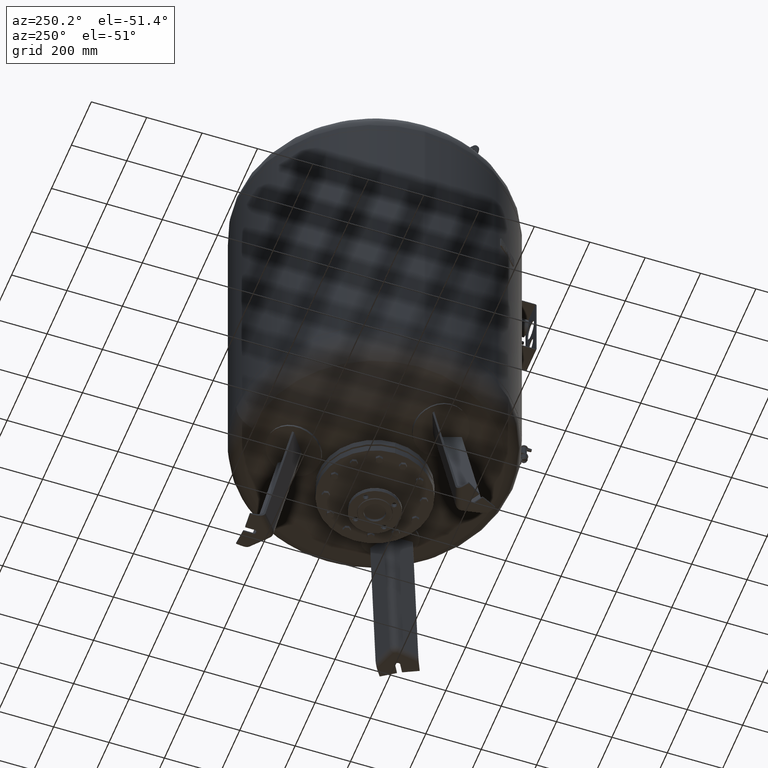
[diagram: clean part render]
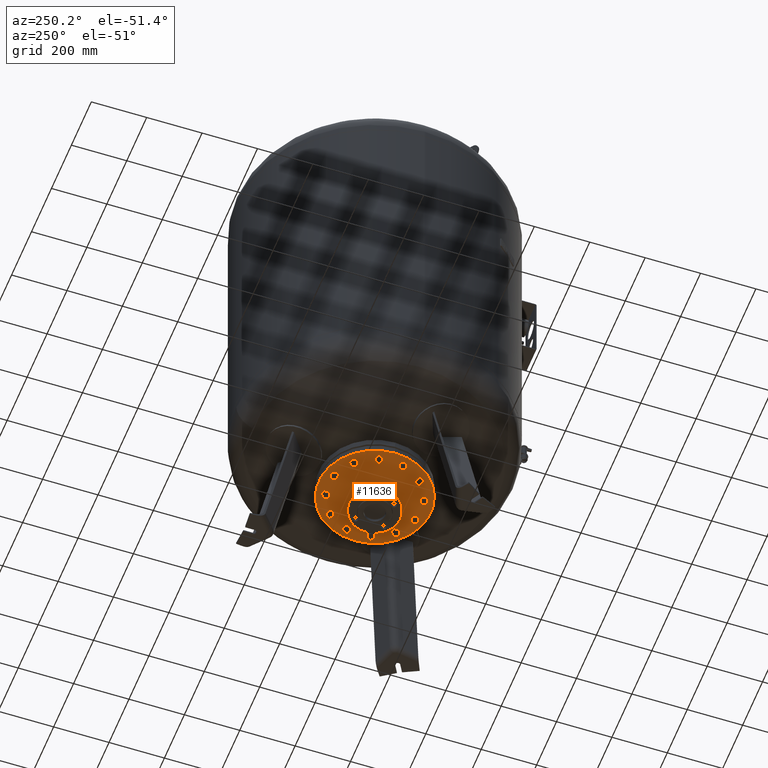
[diagram: same view with one face highlighted and labeled with its STEP entity id]
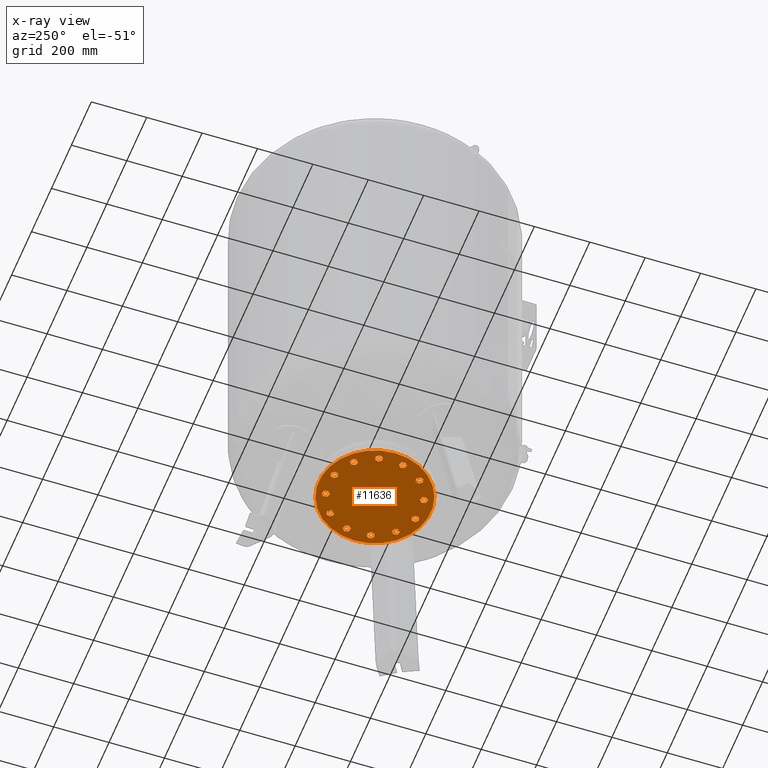
[diagram: x-ray of the same camera — body ghosted, the highlighted face saturated]
A machine part, auxiliary view. The second image highlights one B-rep face of the part: STEP entity #11636.
The next image is the same camera in x-ray: the body ghosted, the highlighted face saturated — about 0% of this face is hidden behind the body in this view.
In plain terms, the highlighted planar face has unit normal (0, 0, -1).
Its self-contained STEP definition (entity closure, byte-faithful):
#3072=CARTESIAN_POINT('',(202.500000000000000,-9.184851E-015,376.0));
#3073=VERTEX_POINT('',#3072);
#3089=CARTESIAN_POINT('',(-202.500000000000000,-3.398313E-014,376.0));
#3090=VERTEX_POINT('',#3089);
#3097=CARTESIAN_POINT('',(0.0,-9.184851E-015,376.0));
#3098=DIRECTION('',(0.0,0.0,1.0));
#3099=DIRECTION('',(1.0,0.0,0.0));
#3100=AXIS2_PLACEMENT_3D('',#3097,#3098,#3099);
#3101=CIRCLE('',#3100,202.500000000000000);
#3102=EDGE_CURVE('',#3090,#3073,#3101,.T.);
#5052=CARTESIAN_POINT('',(0.0,38.049999999999990,376.0));
#5053=VERTEX_POINT('',#5052);
#5069=CARTESIAN_POINT('',(-4.659627E-015,-38.050000000000011,376.0));
#5070=VERTEX_POINT('',#5069);
#5077=CARTESIAN_POINT('',(0.0,-9.184851E-015,376.0));
#5078=DIRECTION('',(0.0,0.0,1.0));
#5079=DIRECTION('',(0.0,1.0,0.0));
#5080=AXIS2_PLACEMENT_3D('',#5077,#5078,#5079);
#5081=CIRCLE('',#5080,38.049999999999997);
#5082=EDGE_CURVE('',#5053,#5070,#5081,.T.);
#5093=CARTESIAN_POINT('',(0.0,-9.184851E-015,376.0));
#5094=DIRECTION('',(0.0,0.0,1.0));
#5095=DIRECTION('',(0.0,1.0,0.0));
#5096=AXIS2_PLACEMENT_3D('',#5093,#5094,#5095);
#5097=CIRCLE('',#5096,38.049999999999997);
#5098=EDGE_CURVE('',#5070,#5053,#5097,.T.);
#9126=CARTESIAN_POINT('',(-157.729139400922860,30.104983413641001,376.0));
#9127=VERTEX_POINT('',#9126);
#9128=CARTESIAN_POINT('',(-148.288440171855850,40.247625971983254,376.0));
#9129=VERTEX_POINT('',#9128);
#9130=CARTESIAN_POINT('',(-157.729139400922860,30.104983413641001,376.0));
#9131=DIRECTION('',(0.681323780155013,0.731982176419128,0.0));
#9132=VECTOR('',#9131,13.856406460551087);
#9133=LINE('',#9130,#9132);
#9134=EDGE_CURVE('',#9127,#9129,#9133,.T.);
#9166=CARTESIAN_POINT('',(-171.233275132485970,33.209547496330096,376.0));
#9167=VERTEX_POINT('',#9166);
#9168=CARTESIAN_POINT('',(-171.233275132485970,33.209547496330096,376.0));
#9169=DIRECTION('',(0.974577049973894,-0.224052613607122,0.0));
#9170=VECTOR('',#9169,13.856406460551117);
#9171=LINE('',#9168,#9170);
#9172=EDGE_CURVE('',#9167,#9127,#9171,.T.);
#9197=CARTESIAN_POINT('',(-175.296711634982050,46.456754137361408,376.0));
#9198=VERTEX_POINT('',#9197);
#9199=CARTESIAN_POINT('',(-175.296711634982050,46.456754137361408,376.0));
#9200=DIRECTION('',(0.293253269818881,-0.956034790026249,0.0));
#9201=VECTOR('',#9200,13.856406460551076);
#9202=LINE('',#9199,#9201);
#9203=EDGE_CURVE('',#9198,#9167,#9202,.T.);
#9228=CARTESIAN_POINT('',(-152.351876674351930,53.494832613014573,376.0));
#9229=VERTEX_POINT('',#9228);
#9230=CARTESIAN_POINT('',(-148.288440171855850,40.247625971983254,376.0));
#9231=DIRECTION('',(-0.293253269818881,0.956034790026249,0.0));
#9232=VECTOR('',#9231,13.856406460551083);
#9233=LINE('',#9230,#9232);
#9234=EDGE_CURVE('',#9129,#9229,#9233,.T.);
#9259=CARTESIAN_POINT('',(-165.856012405915040,56.599396695703675,376.0));
#9260=VERTEX_POINT('',#9259);
#9261=CARTESIAN_POINT('',(-152.351876674351930,53.494832613014573,376.0));
#9262=DIRECTION('',(-0.974577049973894,0.224052613607123,0.0));
#9263=VECTOR('',#9262,13.856406460551119);
#9264=LINE('',#9261,#9263);
#9265=EDGE_CURVE('',#9229,#9260,#9264,.T.);
#9290=CARTESIAN_POINT('',(-165.856012405915040,56.599396695703675,376.0));
#9291=DIRECTION('',(-0.681323780155012,-0.731982176419129,0.0));
#9292=VECTOR('',#9291,13.856406460551096);
#9293=LINE('',#9290,#9292);
#9294=EDGE_CURVE('',#9260,#9198,#9293,.T.);
#9326=CARTESIAN_POINT('',(-121.544949931435720,104.936250117183760,376.0));
#9327=VERTEX_POINT('',#9326);
#9328=CARTESIAN_POINT('',(-108.297743290404380,108.999686619679820,376.0));
#9329=VERTEX_POINT('',#9328);
#9330=CARTESIAN_POINT('',(-121.544949931435720,104.936250117183760,376.0));
#9331=DIRECTION('',(0.956034790026250,0.293253269818880,0.0));
#9332=VECTOR('',#9331,13.856406460551101);
#9333=LINE('',#9330,#9332);
#9334=EDGE_CURVE('',#9327,#9329,#9333,.T.);
#9366=CARTESIAN_POINT('',(-131.687592489777960,114.376949346250780,376.0));
#9367=VERTEX_POINT('',#9366);
#9368=CARTESIAN_POINT('',(-131.687592489777960,114.376949346250780,376.0));
#9369=DIRECTION('',(0.731982176419127,-0.681323780155014,0.0));
#9370=VECTOR('',#9369,13.856406460551080);
#9371=LINE('',#9368,#9370);
#9372=EDGE_CURVE('',#9367,#9327,#9371,.T.);
#9397=CARTESIAN_POINT('',(-128.583028407088880,127.881085077813880,376.0));
#9398=VERTEX_POINT('',#9397);
#9399=CARTESIAN_POINT('',(-128.583028407088880,127.881085077813880,376.0));
#9400=DIRECTION('',(-0.224052613607122,-0.974577049973894,0.0));
#9401=VECTOR('',#9400,13.856406460551099);
#9402=LINE('',#9399,#9401);
#9403=EDGE_CURVE('',#9398,#9367,#9402,.T.);
#9428=CARTESIAN_POINT('',(-105.193179207715300,122.503822351242900,376.0));
#9429=VERTEX_POINT('',#9428);
#9430=CARTESIAN_POINT('',(-108.297743290404380,108.999686619679820,376.0));
#9431=DIRECTION('',(0.224052613607122,0.974577049973894,0.0));
#9432=VECTOR('',#9431,13.856406460551087);
#9433=LINE('',#9430,#9432);
#9434=EDGE_CURVE('',#9329,#9429,#9433,.T.);
#9459=CARTESIAN_POINT('',(-115.335821766057560,131.944521580309950,376.0));
#9460=VERTEX_POINT('',#9459);
#9461=CARTESIAN_POINT('',(-105.193179207715300,122.503822351242900,376.0));
#9462=DIRECTION('',(-0.731982176419127,0.681323780155014,0.0));
#9463=VECTOR('',#9462,13.856406460551121);
#9464=LINE('',#9461,#9463);
#9465=EDGE_CURVE('',#9429,#9460,#9464,.T.);
#9490=CARTESIAN_POINT('',(-115.335821766057560,131.944521580309950,376.0));
#9491=DIRECTION('',(-0.956034790026249,-0.293253269818881,0.0));
#9492=VECTOR('',#9491,13.856406460551076);
#9493=LINE('',#9490,#9492);
#9494=EDGE_CURVE('',#9460,#9398,#9493,.T.);
#9526=CARTESIAN_POINT('',(-52.792889283739193,151.649933345076730,376.0));
#9527=VERTEX_POINT('',#9526);
#9528=CARTESIAN_POINT('',(-39.288753552176118,148.545369262387680,376.0));
#9529=VERTEX_POINT('',#9528);
#9530=CARTESIAN_POINT('',(-52.792889283739193,151.649933345076730,376.0));
#9531=DIRECTION('',(0.974577049973894,-0.224052613607120,0.0));
#9532=VECTOR('',#9531,13.856406460551073);
#9533=LINE('',#9530,#9532);
#9534=EDGE_CURVE('',#9527,#9529,#9533,.T.);
#9566=CARTESIAN_POINT('',(-56.856325786235274,164.897139986108100,376.0));
#9567=VERTEX_POINT('',#9566);
#9568=CARTESIAN_POINT('',(-56.856325786235274,164.897139986108100,376.0));
#9569=DIRECTION('',(0.293253269818881,-0.956034790026249,0.0));
#9570=VECTOR('',#9569,13.856406460551133);
#9571=LINE('',#9568,#9570);
#9572=EDGE_CURVE('',#9567,#9527,#9571,.T.);
#9597=CARTESIAN_POINT('',(-47.415626557168267,175.039782544450330,376.0));
#9598=VERTEX_POINT('',#9597);
#9599=CARTESIAN_POINT('',(-47.415626557168267,175.039782544450330,376.0));
#9600=DIRECTION('',(-0.681323780155014,-0.731982176419128,0.0));
#9601=VECTOR('',#9600,13.856406460551069);
#9602=LINE('',#9599,#9601);
#9603=EDGE_CURVE('',#9598,#9567,#9602,.T.);
#9628=CARTESIAN_POINT('',(-29.848054323109103,158.688011820729910,376.0));
#9629=VERTEX_POINT('',#9628);
#9630=CARTESIAN_POINT('',(-39.288753552176118,148.545369262387680,376.0));
#9631=DIRECTION('',(0.681323780155014,0.731982176419127,0.0));
#9632=VECTOR('',#9631,13.856406460551076);
#9633=LINE('',#9630,#9632);
#9634=EDGE_CURVE('',#9529,#9629,#9633,.T.);
#9659=CARTESIAN_POINT('',(-33.911490825605156,171.935218461761250,376.0));
#9660=VERTEX_POINT('',#9659);
#9661=CARTESIAN_POINT('',(-29.848054323109103,158.688011820729910,376.0));
#9662=DIRECTION('',(-0.293253269818879,0.956034790026250,0.0));
#9663=VECTOR('',#9662,13.856406460551097);
#9664=LINE('',#9661,#9663);
#9665=EDGE_CURVE('',#9629,#9660,#9664,.T.);
#9690=CARTESIAN_POINT('',(-33.911490825605156,171.935218461761250,376.0));
#9691=DIRECTION('',(-0.974577049973894,0.224052613607121,0.0));
#9692=VECTOR('',#9691,13.856406460551113);
#9693=LINE('',#9690,#9692);
#9694=EDGE_CURVE('',#9660,#9598,#9693,.T.);
#9726=CARTESIAN_POINT('',(30.104983413641008,157.729139400922860,376.0));
#9727=VERTEX_POINT('',#9726);
#9728=CARTESIAN_POINT('',(40.247625971983268,148.288440171855850,376.0));
#9729=VERTEX_POINT('',#9728);
#9730=CARTESIAN_POINT('',(30.104983413641008,157.729139400922860,376.0));
#9731=DIRECTION('',(0.731982176419128,-0.681323780155013,0.0));
#9732=VECTOR('',#9731,13.856406460551090);
#9733=LINE('',#9730,#9732);
#9734=EDGE_CURVE('',#9727,#9729,#9733,.T.);
#9766=CARTESIAN_POINT('',(33.209547496330110,171.233275132485970,376.0));
#9767=VERTEX_POINT('',#9766);
#9768=CARTESIAN_POINT('',(33.209547496330110,171.233275132485970,376.0));
#9769=DIRECTION('',(-0.224052613607123,-0.974577049973894,0.0));
#9770=VECTOR('',#9769,13.856406460551119);
#9771=LINE('',#9768,#9770);
#9772=EDGE_CURVE('',#9767,#9727,#9771,.T.);
#9797=CARTESIAN_POINT('',(46.456754137361422,175.296711634982050,376.0));
#9798=VERTEX_POINT('',#9797);
#9799=CARTESIAN_POINT('',(46.456754137361422,175.296711634982050,376.0));
#9800=DIRECTION('',(-0.956034790026249,-0.293253269818881,0.0));
#9801=VECTOR('',#9800,13.856406460551076);
#9802=LINE('',#9799,#9801);
#9803=EDGE_CURVE('',#9798,#9767,#9802,.T.);
#9828=CARTESIAN_POINT('',(53.494832613014587,152.351876674351930,376.0));
#9829=VERTEX_POINT('',#9828);
#9830=CARTESIAN_POINT('',(40.247625971983268,148.288440171855850,376.0));
#9831=DIRECTION('',(0.956034790026249,0.293253269818881,0.0));
#9832=VECTOR('',#9831,13.856406460551083);
#9833=LINE('',#9830,#9832);
#9834=EDGE_CURVE('',#9729,#9829,#9833,.T.);
#9859=CARTESIAN_POINT('',(56.599396695703689,165.856012405915040,376.0));
#9860=VERTEX_POINT('',#9859);
#9861=CARTESIAN_POINT('',(53.494832613014587,152.351876674351930,376.0));
#9862=DIRECTION('',(0.224052613607123,0.974577049973894,0.0));
#9863=VECTOR('',#9862,13.856406460551119);
#9864=LINE('',#9861,#9863);
#9865=EDGE_CURVE('',#9829,#9860,#9864,.T.);
#9890=CARTESIAN_POINT('',(56.599396695703689,165.856012405915040,376.0));
#9891=DIRECTION('',(-0.731982176419129,0.681323780155012,0.0));
#9892=VECTOR('',#9891,13.856406460551096);
#9893=LINE('',#9890,#9892);
#9894=EDGE_CURVE('',#9860,#9798,#9893,.T.);
#9926=CARTESIAN_POINT('',(104.936250117183700,121.544949931435750,376.0));
#9927=VERTEX_POINT('',#9926);
#9928=CARTESIAN_POINT('',(108.999686619679760,108.297743290404440,376.0));
#9929=VERTEX_POINT('',#9928);
#9930=CARTESIAN_POINT('',(104.936250117183700,121.544949931435750,376.0));
#9931=DIRECTION('',(0.293253269818880,-0.956034790026249,0.0));
#9932=VECTOR('',#9931,13.856406460551073);
#9933=LINE('',#9930,#9932);
#9934=EDGE_CURVE('',#9927,#9929,#9933,.T.);
#9966=CARTESIAN_POINT('',(114.376949346250730,131.687592489778010,376.0));
#9967=VERTEX_POINT('',#9966);
#9968=CARTESIAN_POINT('',(114.376949346250730,131.687592489778010,376.0));
#9969=DIRECTION('',(-0.681323780155013,-0.731982176419128,0.0));
#9970=VECTOR('',#9969,13.856406460551101);
#9971=LINE('',#9968,#9970);
#9972=EDGE_CURVE('',#9967,#9927,#9971,.T.);
#9997=CARTESIAN_POINT('',(127.881085077813810,128.583028407088930,376.0));
#9998=VERTEX_POINT('',#9997);
#9999=CARTESIAN_POINT('',(127.881085077813810,128.583028407088930,376.0));
#10000=DIRECTION('',(-0.974577049973894,0.224052613607122,0.0));
#10001=VECTOR('',#10000,13.856406460551087);
#10002=LINE('',#9999,#10001);
#10003=EDGE_CURVE('',#9998,#9967,#10002,.T.);
#10028=CARTESIAN_POINT('',(122.503822351242850,105.193179207715360,376.0));
#10029=VERTEX_POINT('',#10028);
#10030=CARTESIAN_POINT('',(108.999686619679760,108.297743290404440,376.0));
#10031=DIRECTION('',(0.974577049973894,-0.224052613607122,0.0));
#10032=VECTOR('',#10031,13.856406460551087);
#10033=LINE('',#10030,#10032);
#10034=EDGE_CURVE('',#9929,#10029,#10033,.T.);
#10059=CARTESIAN_POINT('',(131.944521580309900,115.335821766057620,376.0));
#10060=VERTEX_POINT('',#10059);
#10061=CARTESIAN_POINT('',(122.503822351242850,105.193179207715360,376.0));
#10062=DIRECTION('',(0.681323780155014,0.731982176419127,0.0));
#10063=VECTOR('',#10062,13.856406460551121);
#10064=LINE('',#10061,#10063);
#10065=EDGE_CURVE('',#10029,#10060,#10064,.T.);
#10090=CARTESIAN_POINT('',(131.944521580309900,115.335821766057620,376.0));
#10091=DIRECTION('',(-0.293253269818882,0.956034790026249,0.0));
#10092=VECTOR('',#10091,13.856406460551081);
#10093=LINE('',#10090,#10092);
#10094=EDGE_CURVE('',#10060,#9998,#10093,.T.);
#10126=CARTESIAN_POINT('',(151.649933345076730,52.792889283739200,376.0));
#10127=VERTEX_POINT('',#10126);
#10128=CARTESIAN_POINT('',(148.545369262387650,39.288753552176111,376.0));
#10129=VERTEX_POINT('',#10128);
#10130=CARTESIAN_POINT('',(151.649933345076730,52.792889283739200,376.0));
#10131=DIRECTION('',(-0.224052613607122,-0.974577049973894,0.0));
#10132=VECTOR('',#10131,13.856406460551092);
#10133=LINE('',#10130,#10132);
#10134=EDGE_CURVE('',#10127,#10129,#10133,.T.);
#10166=CARTESIAN_POINT('',(164.897139986108100,56.856325786235281,376.0));
#10167=VERTEX_POINT('',#10166);
#10168=CARTESIAN_POINT('',(164.897139986108100,56.856325786235281,376.0));
#10169=DIRECTION('',(-0.956034790026249,-0.293253269818881,0.0));
#10170=VECTOR('',#10169,13.856406460551133);
#10171=LINE('',#10168,#10170);
#10172=EDGE_CURVE('',#10167,#10127,#10171,.T.);
#10197=CARTESIAN_POINT('',(175.039782544450300,47.415626557168245,376.0));
#10198=VERTEX_POINT('',#10197);
#10199=CARTESIAN_POINT('',(175.039782544450300,47.415626557168245,376.0));
#10200=DIRECTION('',(-0.731982176419126,0.681323780155016,0.0));
#10201=VECTOR('',#10200,13.856406460551069);
#10202=LINE('',#10199,#10201);
#10203=EDGE_CURVE('',#10198,#10167,#10202,.T.);
#10228=CARTESIAN_POINT('',(158.688011820729910,29.848054323109103,376.0));
#10229=VERTEX_POINT('',#10228);
#10230=CARTESIAN_POINT('',(148.545369262387650,39.288753552176111,376.0));
#10231=DIRECTION('',(0.731982176419128,-0.681323780155013,0.0));
#10232=VECTOR('',#10231,13.856406460551090);
#10233=LINE('',#10230,#10232);
#10234=EDGE_CURVE('',#10129,#10229,#10233,.T.);
#10259=CARTESIAN_POINT('',(171.935218461761250,33.911490825605156,376.0));
#10260=VERTEX_POINT('',#10259);
#10261=CARTESIAN_POINT('',(158.688011820729910,29.848054323109103,376.0));
#10262=DIRECTION('',(0.956034790026250,0.293253269818879,0.0));
#10263=VECTOR('',#10262,13.856406460551097);
#10264=LINE('',#10261,#10263);
#10265=EDGE_CURVE('',#10229,#10260,#10264,.T.);
#10290=CARTESIAN_POINT('',(171.935218461761250,33.911490825605156,376.0));
#10291=DIRECTION('',(0.224052613607120,0.974577049973894,0.0));
#10292=VECTOR('',#10291,13.856406460551087);
#10293=LINE('',#10290,#10292);
#10294=EDGE_CURVE('',#10260,#10198,#10293,.T.);
#10326=CARTESIAN_POINT('',(157.729139400922860,-30.104983413640994,376.0));
#10327=VERTEX_POINT('',#10326);
#10328=CARTESIAN_POINT('',(148.288440171855850,-40.247625971983261,376.0));
#10329=VERTEX_POINT('',#10328);
#10330=CARTESIAN_POINT('',(157.729139400922860,-30.104983413640994,376.0));
#10331=DIRECTION('',(-0.681323780155012,-0.731982176419129,0.0));
#10332=VECTOR('',#10331,13.856406460551096);
#10333=LINE('',#10330,#10332);
#10334=EDGE_CURVE('',#10327,#10329,#10333,.T.);
#10366=CARTESIAN_POINT('',(171.233275132486000,-33.209547496330110,376.0));
#10367=VERTEX_POINT('',#10366);
#10368=CARTESIAN_POINT('',(171.233275132486000,-33.209547496330110,376.0));
#10369=DIRECTION('',(-0.974577049973894,0.224052613607123,0.0));
#10370=VECTOR('',#10369,13.856406460551149);
#10371=LINE('',#10368,#10370);
#10372=EDGE_CURVE('',#10367,#10327,#10371,.T.);
#10397=CARTESIAN_POINT('',(175.296711634982050,-46.456754137361415,376.0));
#10398=VERTEX_POINT('',#10397);
#10399=CARTESIAN_POINT('',(175.296711634982050,-46.456754137361415,376.0));
#10400=DIRECTION('',(-0.293253269818880,0.956034790026250,0.0));
#10401=VECTOR('',#10400,13.856406460551062);
#10402=LINE('',#10399,#10401);
#10403=EDGE_CURVE('',#10398,#10367,#10402,.T.);
#10428=CARTESIAN_POINT('',(152.351876674351960,-53.494832613014594,376.0));
#10429=VERTEX_POINT('',#10428);
#10430=CARTESIAN_POINT('',(148.288440171855850,-40.247625971983261,376.0));
#10431=DIRECTION('',(0.293253269818883,-0.956034790026249,0.0));
#10432=VECTOR('',#10431,13.856406460551106);
#10433=LINE('',#10430,#10432);
#10434=EDGE_CURVE('',#10329,#10429,#10433,.T.);
#10459=CARTESIAN_POINT('',(165.856012405915070,-56.599396695703660,376.0));
#10460=VERTEX_POINT('',#10459);
#10461=CARTESIAN_POINT('',(152.351876674351960,-53.494832613014594,376.0));
#10462=DIRECTION('',(0.974577049973894,-0.224052613607121,0.0));
#10463=VECTOR('',#10462,13.856406460551110);
#10464=LINE('',#10461,#10463);
#10465=EDGE_CURVE('',#10429,#10460,#10464,.T.);
#10490=CARTESIAN_POINT('',(165.856012405915070,-56.599396695703660,376.0));
#10491=DIRECTION('',(0.681323780155012,0.731982176419129,0.0));
#10492=VECTOR('',#10491,13.856406460551062);
#10493=LINE('',#10490,#10492);
#10494=EDGE_CURVE('',#10460,#10398,#10493,.T.);
#10526=CARTESIAN_POINT('',(121.544949931435750,-104.936250117183680,376.0));
#10527=VERTEX_POINT('',#10526);
#10528=CARTESIAN_POINT('',(108.297743290404440,-108.999686619679760,376.0));
#10529=VERTEX_POINT('',#10528);
#10530=CARTESIAN_POINT('',(121.544949931435750,-104.936250117183680,376.0));
#10531=DIRECTION('',(-0.956034790026249,-0.293253269818882,0.0));
#10532=VECTOR('',#10531,13.856406460551081);
#10533=LINE('',#10530,#10532);
#10534=EDGE_CURVE('',#10527,#10529,#10533,.T.);
#10566=CARTESIAN_POINT('',(131.687592489778010,-114.376949346250730,376.0));
#10567=VERTEX_POINT('',#10566);
#10568=CARTESIAN_POINT('',(131.687592489778010,-114.376949346250730,376.0));
#10569=DIRECTION('',(-0.731982176419127,0.681323780155014,0.0));
#10570=VECTOR('',#10569,13.856406460551121);
#10571=LINE('',#10568,#10570);
#10572=EDGE_CURVE('',#10567,#10527,#10571,.T.);
#10597=CARTESIAN_POINT('',(128.583028407088930,-127.881085077813790,376.0));
#10598=VERTEX_POINT('',#10597);
#10599=CARTESIAN_POINT('',(128.583028407088930,-127.881085077813790,376.0));
#10600=DIRECTION('',(0.224052613607122,0.974577049973894,0.0));
#10601=VECTOR('',#10600,13.856406460551071);
#10602=LINE('',#10599,#10601);
#10603=EDGE_CURVE('',#10598,#10567,#10602,.T.);
#10628=CARTESIAN_POINT('',(105.193179207715360,-122.503822351242850,376.0));
#10629=VERTEX_POINT('',#10628);
#10630=CARTESIAN_POINT('',(108.297743290404440,-108.999686619679760,376.0));
#10631=DIRECTION('',(-0.224052613607122,-0.974577049973894,0.0));
#10632=VECTOR('',#10631,13.856406460551087);
#10633=LINE('',#10630,#10632);
#10634=EDGE_CURVE('',#10529,#10629,#10633,.T.);
#10659=CARTESIAN_POINT('',(115.335821766057620,-131.944521580309900,376.0));
#10660=VERTEX_POINT('',#10659);
#10661=CARTESIAN_POINT('',(105.193179207715360,-122.503822351242850,376.0));
#10662=DIRECTION('',(0.731982176419127,-0.681323780155014,0.0));
#10663=VECTOR('',#10662,13.856406460551121);
#10664=LINE('',#10661,#10663);
#10665=EDGE_CURVE('',#10629,#10660,#10664,.T.);
#10690=CARTESIAN_POINT('',(115.335821766057620,-131.944521580309900,376.0));
#10691=DIRECTION('',(0.956034790026249,0.293253269818883,0.0));
#10692=VECTOR('',#10691,13.856406460551085);
#10693=LINE('',#10690,#10692);
#10694=EDGE_CURVE('',#10660,#10598,#10693,.T.);
#10726=CARTESIAN_POINT('',(52.792889283739228,-151.649933345076730,376.0));
#10727=VERTEX_POINT('',#10726);
#10728=CARTESIAN_POINT('',(39.288753552176132,-148.545369262387680,376.0));
#10729=VERTEX_POINT('',#10728);
#10730=CARTESIAN_POINT('',(52.792889283739228,-151.649933345076730,376.0));
#10731=DIRECTION('',(-0.974577049973894,0.224052613607120,0.0));
#10732=VECTOR('',#10731,13.856406460551094);
#10733=LINE('',#10730,#10732);
#10734=EDGE_CURVE('',#10727,#10729,#10733,.T.);
#10766=CARTESIAN_POINT('',(56.856325786235296,-164.897139986108100,376.0));
#10767=VERTEX_POINT('',#10766);
#10768=CARTESIAN_POINT('',(56.856325786235296,-164.897139986108100,376.0));
#10769=DIRECTION('',(-0.293253269818880,0.956034790026250,0.0));
#10770=VECTOR('',#10769,13.856406460551129);
#10771=LINE('',#10768,#10770);
#10772=EDGE_CURVE('',#10767,#10727,#10771,.T.);
#10797=CARTESIAN_POINT('',(47.415626557168281,-175.039782544450300,376.0));
#10798=VERTEX_POINT('',#10797);
#10799=CARTESIAN_POINT('',(47.415626557168281,-175.039782544450300,376.0));
#10800=DIRECTION('',(0.681323780155015,0.731982176419126,0.0));
#10801=VECTOR('',#10800,13.856406460551055);
#10802=LINE('',#10799,#10801);
#10803=EDGE_CURVE('',#10798,#10767,#10802,.T.);
#10828=CARTESIAN_POINT('',(29.848054323109121,-158.688011820729910,376.0));
#10829=VERTEX_POINT('',#10828);
#10830=CARTESIAN_POINT('',(39.288753552176132,-148.545369262387680,376.0));
#10831=DIRECTION('',(-0.681323780155014,-0.731982176419127,0.0));
#10832=VECTOR('',#10831,13.856406460551073);
#10833=LINE('',#10830,#10832);
#10834=EDGE_CURVE('',#10729,#10829,#10833,.T.);
#10859=CARTESIAN_POINT('',(33.911490825605199,-171.935218461761280,376.0));
#10860=VERTEX_POINT('',#10859);
#10861=CARTESIAN_POINT('',(29.848054323109121,-158.688011820729910,376.0));
#10862=DIRECTION('',(0.293253269818880,-0.956034790026249,0.0));
#10863=VECTOR('',#10862,13.856406460551133);
#10864=LINE('',#10861,#10863);
#10865=EDGE_CURVE('',#10829,#10860,#10864,.T.);
#10890=CARTESIAN_POINT('',(33.911490825605199,-171.935218461761280,376.0));
#10891=DIRECTION('',(0.974577049973895,-0.224052613607118,0.0));
#10892=VECTOR('',#10891,13.856406460551074);
#10893=LINE('',#10890,#10892);
#10894=EDGE_CURVE('',#10860,#10798,#10893,.T.);
#10926=CARTESIAN_POINT('',(-30.104983413640952,-157.729139400922890,376.0));
#10927=VERTEX_POINT('',#10926);
#10928=CARTESIAN_POINT('',(-40.247625971983211,-148.288440171855880,376.0));
#10929=VERTEX_POINT('',#10928);
#10930=CARTESIAN_POINT('',(-30.104983413640952,-157.729139400922890,376.0));
#10931=DIRECTION('',(-0.731982176419128,0.681323780155013,0.0));
#10932=VECTOR('',#10931,13.856406460551090);
#10933=LINE('',#10930,#10932);
#10934=EDGE_CURVE('',#10927,#10929,#10933,.T.);
#10966=CARTESIAN_POINT('',(-33.209547496330039,-171.233275132486000,376.0));
#10967=VERTEX_POINT('',#10966);
#10968=CARTESIAN_POINT('',(-33.209547496330039,-171.233275132486000,376.0));
#10969=DIRECTION('',(0.224052613607122,0.974577049973894,0.0));
#10970=VECTOR('',#10969,13.856406460551115);
#10971=LINE('',#10968,#10970);
#10972=EDGE_CURVE('',#10967,#10927,#10971,.T.);
#10997=CARTESIAN_POINT('',(-46.456754137361351,-175.296711634982070,376.0));
#10998=VERTEX_POINT('',#10997);
#10999=CARTESIAN_POINT('',(-46.456754137361351,-175.296711634982070,376.0));
#11000=DIRECTION('',(0.956034790026249,0.293253269818881,0.0));
#11001=VECTOR('',#11000,13.856406460551076);
#11002=LINE('',#10999,#11001);
#11003=EDGE_CURVE('',#10998,#10967,#11002,.T.);
#11028=CARTESIAN_POINT('',(-53.494832613014523,-152.351876674351960,376.0));
#11029=VERTEX_POINT('',#11028);
#11030=CARTESIAN_POINT('',(-40.247625971983211,-148.288440171855880,376.0));
#11031=DIRECTION('',(-0.956034790026249,-0.293253269818881,0.0));
#11032=VECTOR('',#11031,13.856406460551076);
#11033=LINE('',#11030,#11032);
#11034=EDGE_CURVE('',#10929,#11029,#11033,.T.);
#11059=CARTESIAN_POINT('',(-56.599396695703625,-165.856012405915070,376.0));
#11060=VERTEX_POINT('',#11059);
#11061=CARTESIAN_POINT('',(-53.494832613014523,-152.351876674351960,376.0));
#11062=DIRECTION('',(-0.224052613607123,-0.974577049973894,0.0));
#11063=VECTOR('',#11062,13.856406460551119);
#11064=LINE('',#11061,#11063);
#11065=EDGE_CURVE('',#11029,#11060,#11064,.T.);
#11090=CARTESIAN_POINT('',(-56.599396695703625,-165.856012405915070,376.0));
#11091=DIRECTION('',(0.731982176419129,-0.681323780155012,0.0));
#11092=VECTOR('',#11091,13.856406460551101);
#11093=LINE('',#11090,#11092);
#11094=EDGE_CURVE('',#11060,#10998,#11093,.T.);
#11126=CARTESIAN_POINT('',(-104.936250117183660,-121.544949931435800,376.0));
#11127=VERTEX_POINT('',#11126);
#11128=CARTESIAN_POINT('',(-108.999686619679750,-108.297743290404470,376.0));
#11129=VERTEX_POINT('',#11128);
#11130=CARTESIAN_POINT('',(-104.936250117183660,-121.544949931435800,376.0));
#11131=DIRECTION('',(-0.293253269818882,0.956034790026249,0.0));
#11132=VECTOR('',#11131,13.856406460551094);
#11133=LINE('',#11130,#11132);
#11134=EDGE_CURVE('',#11127,#11129,#11133,.T.);
#11166=CARTESIAN_POINT('',(-114.376949346250710,-131.687592489778040,376.0));
#11167=VERTEX_POINT('',#11166);
#11168=CARTESIAN_POINT('',(-114.376949346250710,-131.687592489778040,376.0));
#11169=DIRECTION('',(0.681323780155015,0.731982176419126,0.0));
#11170=VECTOR('',#11169,13.856406460551110);
#11171=LINE('',#11168,#11170);
#11172=EDGE_CURVE('',#11167,#11127,#11171,.T.);
#11197=CARTESIAN_POINT('',(-127.881085077813760,-128.583028407088960,376.0));
#11198=VERTEX_POINT('',#11197);
#11199=CARTESIAN_POINT('',(-127.881085077813760,-128.583028407088960,376.0));
#11200=DIRECTION('',(0.974577049973894,-0.224052613607122,0.0));
#11201=VECTOR('',#11200,13.856406460551058);
#11202=LINE('',#11199,#11201);
#11203=EDGE_CURVE('',#11198,#11167,#11202,.T.);
#11228=CARTESIAN_POINT('',(-122.503822351242830,-105.193179207715390,376.0));
#11229=VERTEX_POINT('',#11228);
#11230=CARTESIAN_POINT('',(-108.999686619679750,-108.297743290404470,376.0));
#11231=DIRECTION('',(-0.974577049973894,0.224052613607122,0.0));
#11232=VECTOR('',#11231,13.856406460551087);
#11233=LINE('',#11230,#11232);
#11234=EDGE_CURVE('',#11129,#11229,#11233,.T.);
#11259=CARTESIAN_POINT('',(-131.944521580309870,-115.335821766057650,376.0));
#11260=VERTEX_POINT('',#11259);
#11261=CARTESIAN_POINT('',(-122.503822351242830,-105.193179207715390,376.0));
#11262=DIRECTION('',(-0.681323780155014,-0.731982176419127,0.0));
#11263=VECTOR('',#11262,13.856406460551110);
#11264=LINE('',#11261,#11263);
#11265=EDGE_CURVE('',#11229,#11260,#11264,.T.);
#11290=CARTESIAN_POINT('',(-131.944521580309870,-115.335821766057650,376.0));
#11291=DIRECTION('',(0.293253269818883,-0.956034790026249,0.0));
#11292=VECTOR('',#11291,13.856406460551085);
#11293=LINE('',#11290,#11292);
#11294=EDGE_CURVE('',#11260,#11198,#11293,.T.);
#11326=CARTESIAN_POINT('',(-151.649933345076730,-52.792889283739243,376.0));
#11327=VERTEX_POINT('',#11326);
#11328=CARTESIAN_POINT('',(-148.545369262387650,-39.288753552176154,376.0));
#11329=VERTEX_POINT('',#11328);
#11330=CARTESIAN_POINT('',(-151.649933345076730,-52.792889283739243,376.0));
#11331=DIRECTION('',(0.224052613607122,0.974577049973894,0.0));
#11332=VECTOR('',#11331,13.856406460551092);
#11333=LINE('',#11330,#11332);
#11334=EDGE_CURVE('',#11327,#11329,#11333,.T.);
#11366=CARTESIAN_POINT('',(-164.897139986108070,-56.856325786235317,376.0));
#11367=VERTEX_POINT('',#11366);
#11368=CARTESIAN_POINT('',(-164.897139986108070,-56.856325786235317,376.0));
#11369=DIRECTION('',(0.956034790026249,0.293253269818881,0.0));
#11370=VECTOR('',#11369,13.856406460551105);
#11371=LINE('',#11368,#11370);
#11372=EDGE_CURVE('',#11367,#11327,#11371,.T.);
#11397=CARTESIAN_POINT('',(-175.039782544450300,-47.415626557168309,376.0));
#11398=VERTEX_POINT('',#11397);
#11399=CARTESIAN_POINT('',(-175.039782544450300,-47.415626557168309,376.0));
#11400=DIRECTION('',(0.731982176419128,-0.681323780155014,0.0));
#11401=VECTOR('',#11400,13.856406460551069);
#11402=LINE('',#11399,#11401);
#11403=EDGE_CURVE('',#11398,#11367,#11402,.T.);
#11428=CARTESIAN_POINT('',(-158.688011820729910,-29.848054323109139,376.0));
#11429=VERTEX_POINT('',#11428);
#11430=CARTESIAN_POINT('',(-148.545369262387650,-39.288753552176154,376.0));
#11431=DIRECTION('',(-0.731982176419128,0.681323780155013,0.0));
#11432=VECTOR('',#11431,13.856406460551096);
#11433=LINE('',#11430,#11432);
#11434=EDGE_CURVE('',#11329,#11429,#11433,.T.);
#11459=CARTESIAN_POINT('',(-171.935218461761250,-33.911490825605220,376.0));
#11460=VERTEX_POINT('',#11459);
#11461=CARTESIAN_POINT('',(-158.688011820729910,-29.848054323109139,376.0));
#11462=DIRECTION('',(-0.956034790026249,-0.293253269818881,0.0));
#11463=VECTOR('',#11462,13.856406460551106);
#11464=LINE('',#11461,#11463);
#11465=EDGE_CURVE('',#11429,#11460,#11464,.T.);
#11490=CARTESIAN_POINT('',(-171.935218461761250,-33.911490825605220,376.0));
#11491=DIRECTION('',(-0.224052613607120,-0.974577049973894,0.0));
#11492=VECTOR('',#11491,13.856406460551087);
#11493=LINE('',#11490,#11492);
#11494=EDGE_CURVE('',#11460,#11398,#11493,.T.);
#11521=CARTESIAN_POINT('',(101.250000000000000,-9.184851E-015,376.0));
#11522=DIRECTION('',(0.0,0.0,-1.0));
#11523=DIRECTION('',(0.0,1.0,0.0));
#11524=AXIS2_PLACEMENT_3D('',#11521,#11522,#11523);
#11525=PLANE('',#11524);
#11526=CARTESIAN_POINT('',(0.0,-9.184851E-015,376.0));
#11527=DIRECTION('',(0.0,0.0,1.0));
#11528=DIRECTION('',(1.0,0.0,0.0));
#11529=AXIS2_PLACEMENT_3D('',#11526,#11527,#11528);
#11530=CIRCLE('',#11529,202.500000000000000);
#11531=EDGE_CURVE('',#3073,#3090,#11530,.T.);
#11532=ORIENTED_EDGE('',*,*,#11531,.F.);
#11533=ORIENTED_EDGE('',*,*,#3102,.F.);
#11534=EDGE_LOOP('',(#11532,#11533));
#11535=FACE_OUTER_BOUND('',#11534,.T.);
#11536=ORIENTED_EDGE('',*,*,#5082,.T.);
#11537=ORIENTED_EDGE('',*,*,#5098,.T.);
#11538=EDGE_LOOP('',(#11536,#11537));
#11539=FACE_BOUND('',#11538,.T.);
#11540=ORIENTED_EDGE('',*,*,#9134,.T.);
#11541=ORIENTED_EDGE('',*,*,#9234,.T.);
#11542=ORIENTED_EDGE('',*,*,#9265,.T.);
#11543=ORIENTED_EDGE('',*,*,#9294,.T.);
#11544=ORIENTED_EDGE('',*,*,#9203,.T.);
#11545=ORIENTED_EDGE('',*,*,#9172,.T.);
#11546=EDGE_LOOP('',(#11540,#11541,#11542,#11543,#11544,#11545));
#11547=FACE_BOUND('',#11546,.T.);
#11548=ORIENTED_EDGE('',*,*,#9334,.T.);
#11549=ORIENTED_EDGE('',*,*,#9434,.T.);
#11550=ORIENTED_EDGE('',*,*,#9465,.T.);
#11551=ORIENTED_EDGE('',*,*,#9494,.T.);
#11552=ORIENTED_EDGE('',*,*,#9403,.T.);
#11553=ORIENTED_EDGE('',*,*,#9372,.T.);
#11554=EDGE_LOOP('',(#11548,#11549,#11550,#11551,#11552,#11553));
#11555=FACE_BOUND('',#11554,.T.);
#11556=ORIENTED_EDGE('',*,*,#9534,.T.);
#11557=ORIENTED_EDGE('',*,*,#9634,.T.);
#11558=ORIENTED_EDGE('',*,*,#9665,.T.);
#11559=ORIENTED_EDGE('',*,*,#9694,.T.);
#11560=ORIENTED_EDGE('',*,*,#9603,.T.);
#11561=ORIENTED_EDGE('',*,*,#9572,.T.);
#11562=EDGE_LOOP('',(#11556,#11557,#11558,#11559,#11560,#11561));
#11563=FACE_BOUND('',#11562,.T.);
#11564=ORIENTED_EDGE('',*,*,#9734,.T.);
#11565=ORIENTED_EDGE('',*,*,#9834,.T.);
#11566=ORIENTED_EDGE('',*,*,#9865,.T.);
#11567=ORIENTED_EDGE('',*,*,#9894,.T.);
#11568=ORIENTED_EDGE('',*,*,#9803,.T.);
#11569=ORIENTED_EDGE('',*,*,#9772,.T.);
#11570=EDGE_LOOP('',(#11564,#11565,#11566,#11567,#11568,#11569));
#11571=FACE_BOUND('',#11570,.T.);
#11572=ORIENTED_EDGE('',*,*,#9934,.T.);
#11573=ORIENTED_EDGE('',*,*,#10034,.T.);
#11574=ORIENTED_EDGE('',*,*,#10065,.T.);
#11575=ORIENTED_EDGE('',*,*,#10094,.T.);
#11576=ORIENTED_EDGE('',*,*,#10003,.T.);
#11577=ORIENTED_EDGE('',*,*,#9972,.T.);
#11578=EDGE_LOOP('',(#11572,#11573,#11574,#11575,#11576,#11577));
#11579=FACE_BOUND('',#11578,.T.);
#11580=ORIENTED_EDGE('',*,*,#10134,.T.);
#11581=ORIENTED_EDGE('',*,*,#10234,.T.);
#11582=ORIENTED_EDGE('',*,*,#10265,.T.);
#11583=ORIENTED_EDGE('',*,*,#10294,.T.);
#11584=ORIENTED_EDGE('',*,*,#10203,.T.);
#11585=ORIENTED_EDGE('',*,*,#10172,.T.);
#11586=EDGE_LOOP('',(#11580,#11581,#11582,#11583,#11584,#11585));
#11587=FACE_BOUND('',#11586,.T.);
#11588=ORIENTED_EDGE('',*,*,#10334,.T.);
#11589=ORIENTED_EDGE('',*,*,#10434,.T.);
#11590=ORIENTED_EDGE('',*,*,#10465,.T.);
#11591=ORIENTED_EDGE('',*,*,#10494,.T.);
#11592=ORIENTED_EDGE('',*,*,#10403,.T.);
#11593=ORIENTED_EDGE('',*,*,#10372,.T.);
#11594=EDGE_LOOP('',(#11588,#11589,#11590,#11591,#11592,#11593));
#11595=FACE_BOUND('',#11594,.T.);
#11596=ORIENTED_EDGE('',*,*,#10534,.T.);
#11597=ORIENTED_EDGE('',*,*,#10634,.T.);
#11598=ORIENTED_EDGE('',*,*,#10665,.T.);
#11599=ORIENTED_EDGE('',*,*,#10694,.T.);
#11600=ORIENTED_EDGE('',*,*,#10603,.T.);
#11601=ORIENTED_EDGE('',*,*,#10572,.T.);
#11602=EDGE_LOOP('',(#11596,#11597,#11598,#11599,#11600,#11601));
#11603=FACE_BOUND('',#11602,.T.);
#11604=ORIENTED_EDGE('',*,*,#10734,.T.);
#11605=ORIENTED_EDGE('',*,*,#10834,.T.);
#11606=ORIENTED_EDGE('',*,*,#10865,.T.);
#11607=ORIENTED_EDGE('',*,*,#10894,.T.);
#11608=ORIENTED_EDGE('',*,*,#10803,.T.);
#11609=ORIENTED_EDGE('',*,*,#10772,.T.);
#11610=EDGE_LOOP('',(#11604,#11605,#11606,#11607,#11608,#11609));
#11611=FACE_BOUND('',#11610,.T.);
#11612=ORIENTED_EDGE('',*,*,#10934,.T.);
#11613=ORIENTED_EDGE('',*,*,#11034,.T.);
#11614=ORIENTED_EDGE('',*,*,#11065,.T.);
#11615=ORIENTED_EDGE('',*,*,#11094,.T.);
#11616=ORIENTED_EDGE('',*,*,#11003,.T.);
#11617=ORIENTED_EDGE('',*,*,#10972,.T.);
#11618=EDGE_LOOP('',(#11612,#11613,#11614,#11615,#11616,#11617));
#11619=FACE_BOUND('',#11618,.T.);
#11620=ORIENTED_EDGE('',*,*,#11134,.T.);
#11621=ORIENTED_EDGE('',*,*,#11234,.T.);
#11622=ORIENTED_EDGE('',*,*,#11265,.T.);
#11623=ORIENTED_EDGE('',*,*,#11294,.T.);
#11624=ORIENTED_EDGE('',*,*,#11203,.T.);
#11625=ORIENTED_EDGE('',*,*,#11172,.T.);
#11626=EDGE_LOOP('',(#11620,#11621,#11622,#11623,#11624,#11625));
#11627=FACE_BOUND('',#11626,.T.);
#11628=ORIENTED_EDGE('',*,*,#11334,.T.);
#11629=ORIENTED_EDGE('',*,*,#11434,.T.);
#11630=ORIENTED_EDGE('',*,*,#11465,.T.);
#11631=ORIENTED_EDGE('',*,*,#11494,.T.);
#11632=ORIENTED_EDGE('',*,*,#11403,.T.);
#11633=ORIENTED_EDGE('',*,*,#11372,.T.);
#11634=EDGE_LOOP('',(#11628,#11629,#11630,#11631,#11632,#11633));
#11635=FACE_BOUND('',#11634,.T.);
#11636=ADVANCED_FACE('',(#11535,#11539,#11547,#11555,#11563,#11571,#11579,#11587,#11595,#11603,#11611,#11619,#11627,#11635),#11525,.T.);